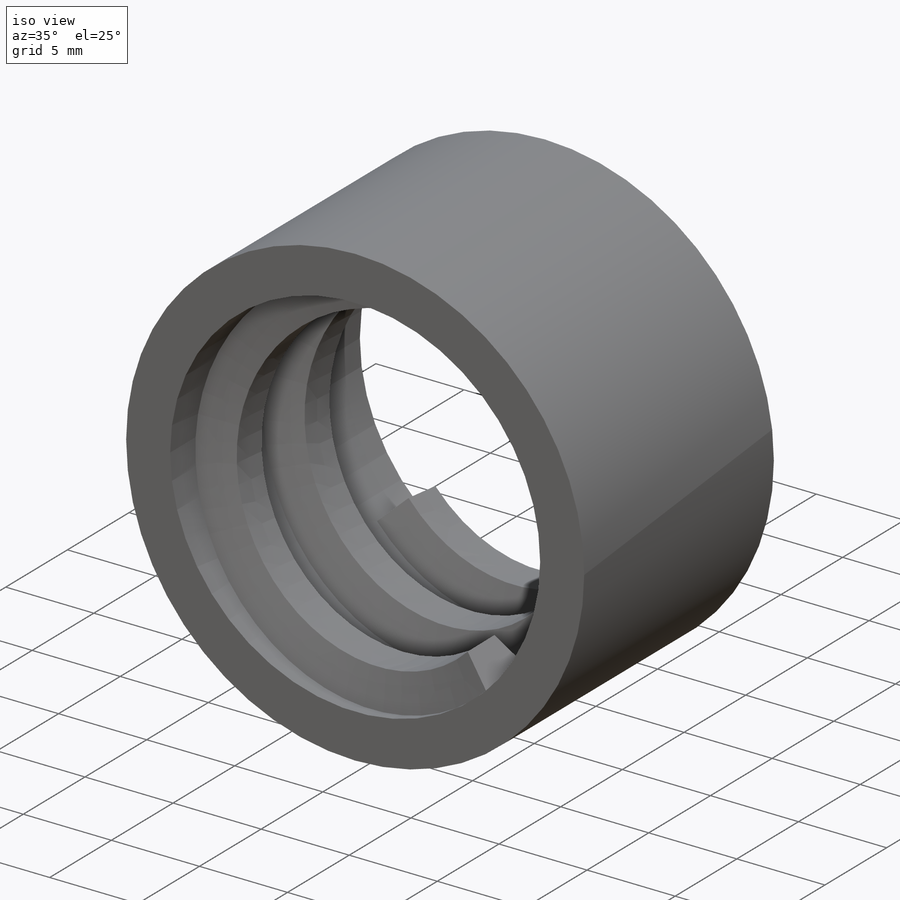
[diagram: iso view]
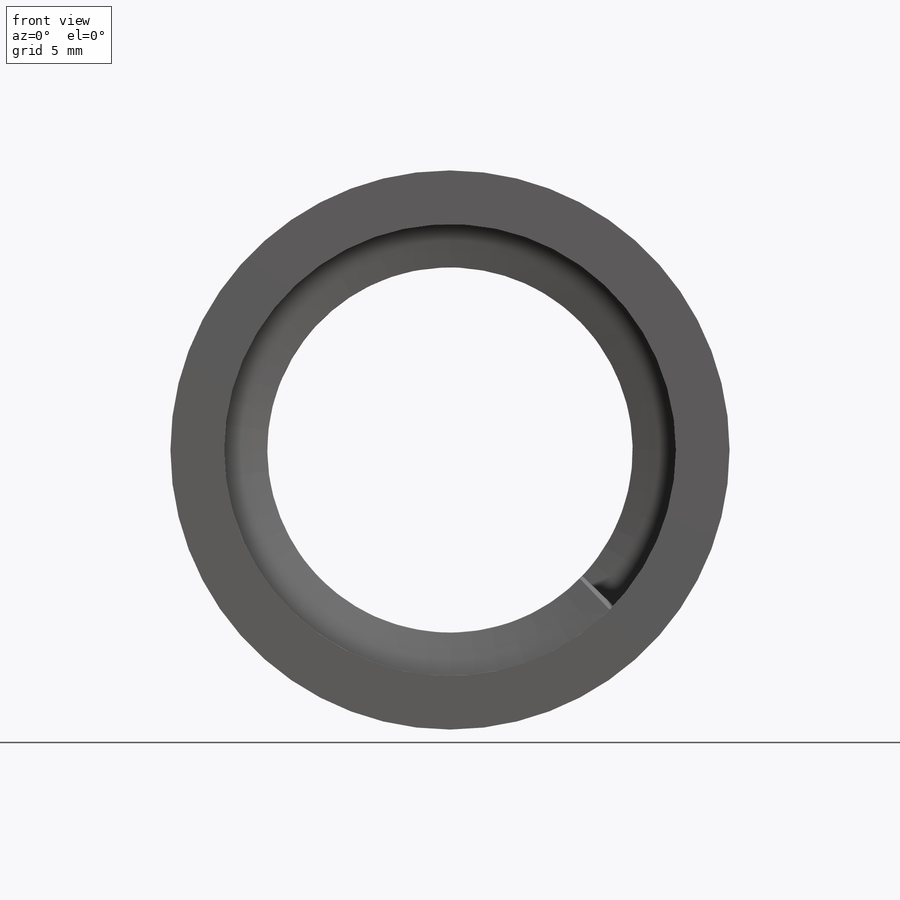
[diagram: front view]
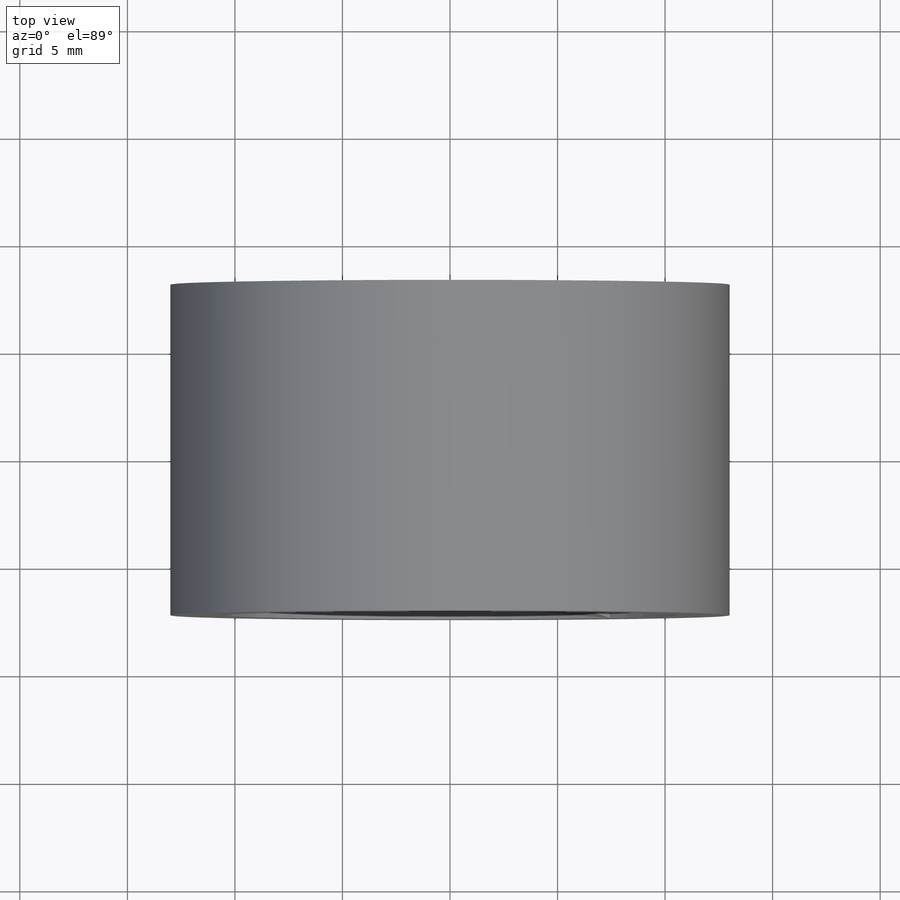
[diagram: top view]
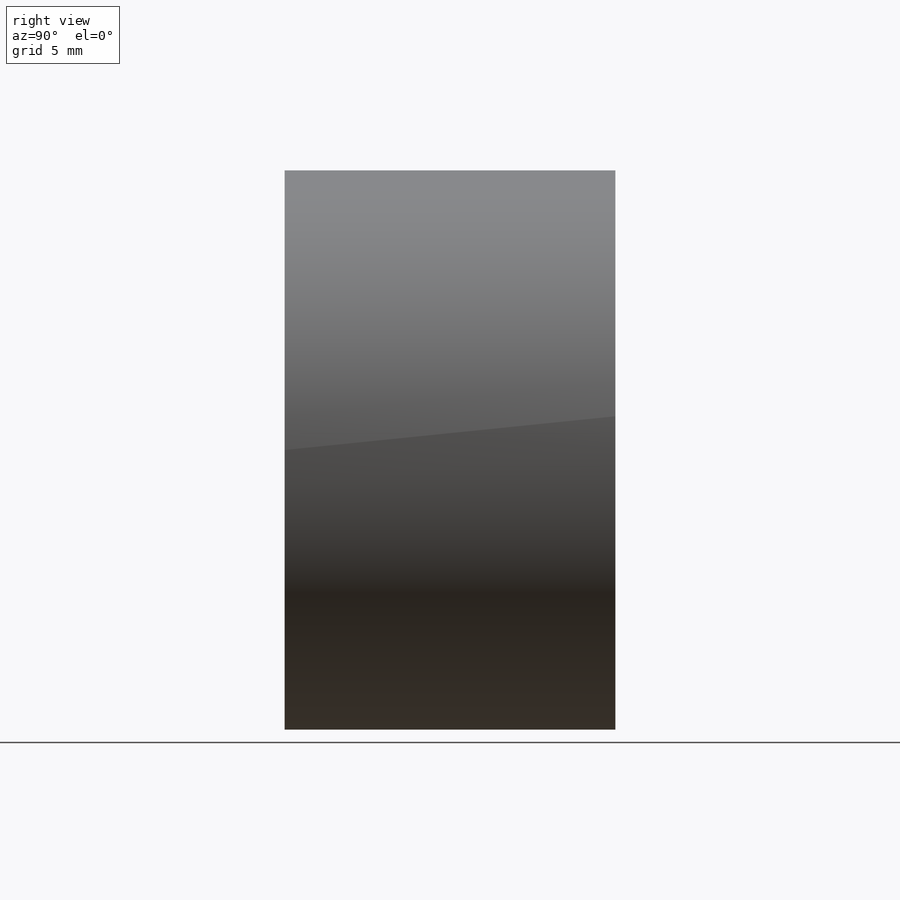
[diagram: right view]
SOLIDWORKS PART (.sldprt)
format: sldprt  version: not decoded by parser v0  size: 294,400 bytes
history: native  units: mm
features: plane x4, sketch x4, material x1, extrude x1, cut_extrude x1, helix x1, sweep x1 (+9 scaffold rows collapsed)
feature tree (22):
  scaffold x9  (default folders/planes/origin — collapsed)
  material  "材质 <未指定>"
  plane  "前视基准面"
  plane  "上视基准面"
  plane  "右视基准面"
  sketch  "草图1"  dims[D1=~28.994122mm]
  extrude  "凸台-拉伸1"  Depth=12.375mm
  sketch  "草图2"  dims[D1=10.0mm]
  cut_extrude  "切除-拉伸1"  Depth=10mm
  sketch  "草图3"  dims[D1=10.0mm]
  helix  "螺旋线/涡状线1"  Pitch=12.375mm
  plane  "基准面1"
  sketch  "草图4"
  sweep  "扫描1"
decode coverage: 6 of 8 modeling features carry decoded parameters
note: ~ marks probable driven/reference dimensions
note: suppression state not decoded; provenance and decode notes live in map.json
